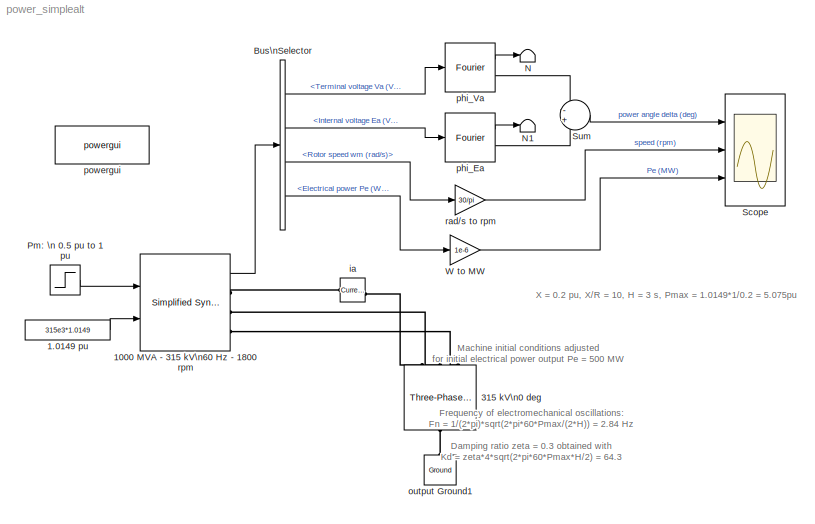
MODEL power_simplealt
KIND model
BLOCK [Constant] 1.0149 pu
  Value = 315e3*1.0149
BLOCK [Reference] 1000 MVA - 315 kV\n60 Hz - 1800 rpm  REF=powerlib/Machines/Simplified Synchronous\nMachine SI Units
  AttributesFormatString = \\n
  ConnectionType = 3-wire Y
  InitialConditions = [0 5.65442 1296.03 1296.03 1296.03 0 -120 120]
  InternalRL = [ 99.225*0.02 ,99.225/(2*pi*60)*0.2 ]
  LoadFlowParameters = [1 500000000 0 0 0]
  Mechanical = [168870,  64.3,  2]
  NominalParameters = [ 1000e6, 315e3, 60 ]
  Ports = [2, 1, 0, 0, 0, 0, 3]
  ShowPortLabels = on
  SourceBlock = powerlib/Machines/Simplified Synchronous\nMachine SI Units
  SourceType = Simplified Synchronous Machine
  Units = 1
BLOCK [Reference] 315 kV\n0 deg  REF=powerlib/Electrical\nSources/Three-Phase\nProgrammable\nVoltage Source
  Amplitudes = [1 0.8 1.2 1.0]
  HarmonicA = [3 0.2 -25 0]
  HarmonicB = [2 0.15  35 2]
  HarmonicGeneration = off
  Ports = [0, 0, 0, 0, 0, 1, 3]
  PositiveSequence = [315e3 0  60]
  ShowPortLabels = on
  SourceBlock = powerlib/Electrical\nSources/Three-Phase\nProgrammable\nVoltage Source
  SourceType = Three-Phase Programmable Voltage Source
  TimeValues = [0 0.1 0.15 0.2]
  Timing = [0.05  3]
  VariationEntity = None
  VariationFrequency = 2
  VariationMagnitude = 0.3
  VariationPhaseA = off
  VariationRate = 10
  VariationStep = -0.5
  VariationTiming = [0.1 1.2]
  VariationType = Step
BLOCK [BusSelector] Bus\nSelector
  DialogController = Simulink.DDGSource_Bus
  OutputSignals = Terminal voltage Va (V),Internal voltage Ea (V),Rotor speed wm (rad/s),Electrical power Pe (W)
  Ports = [1, 4]
BLOCK [Terminator] N
BLOCK [Terminator] N1
BLOCK [Step] Pm: \n 0.5 pu to 1 pu
  After = 1000e6
  Before = 505e6
  SampleTime = 0
  Time = 0.5
BLOCK [Scope] Scope
  DataFormat = Structure
  LimitDataPoints = off
  NumInputPorts = 3
  Ports = [3]
  SaveName = delta
  SaveToWorkspace = on
  YMax = 14~1806~1200
  YMin = 5~1797~500
  ZoomMode = xonly
BLOCK [Sum] Sum
  IconShape = round
  Inputs = -+
  Ports = [2, 1]
BLOCK [Gain] W to MW
  Gain = 1e-6
BLOCK [Reference] ia  REF=powerlib/Measurements/Current Measurement
  AttributesFormatString = \\n
  OutputType = Magnitude
  PSBequivalent = 0
  PhasorSimulation = off
  Ports = [0, 1, 0, 0, 0, 1, 1]
  ShowPortLabels = on
  SourceBlock = powerlib/Measurements/Current Measurement
  SourceType = Current Measurement
  Tag = PoWeRsYsTeMmEaSuReMeNt
BLOCK [Reference] output Ground1  REF=powerlib/Elements/Ground
  AttributesFormatString = \\n
  LConnTagsString = a
  LeftPortType = p1
  PhysicalDomain = powersysdomain
  Ports = [0, 0, 0, 0, 0, 1]
  RightPortType = p1
  SourceBlock = powerlib/Elements/Ground
  SourceType = Ground
  SubClassName = unknown
BLOCK [Reference] phi_Ea  REF=powerlib_extras/Measurements/Fourier
  Ports = [1, 2]
  ShowPortLabels = on
  SourceBlock = powerlib_extras/Measurements/Fourier
  SourceType = Fourier analyser
  f1 = 60
  n = 1
BLOCK [Reference] phi_Va  REF=powerlib_extras/Measurements/Fourier
  Ports = [1, 2]
  ShowPortLabels = on
  SourceBlock = powerlib_extras/Measurements/Fourier
  SourceType = Fourier analyser
  f1 = 60
  n = 1
BLOCK [Reference] powergui  REF=powerlib/powergui
  DisplayStyle = off
  Frange = [0:2:500]
  FreqAxis = off
  MaxFrequency = 1000
  Ports = []
  Priority = 2
  RmsSteady = 1
  ShowPortLabels = on
  SourceBlock = powerlib/powergui
  SourceType = PSB option menu block
  StartTime = 0.0
  Ts = 0
  Xlog = off
  Ylog = off
  ZoomFFT = on
  cycles = 1
  display = off
  echomessages = off
  frequency = 60
  frequencyindice = 60
  frequencyindicesteady = 1
  fundamental = 60
  methode = off
  save = off
  variable = ZData
BLOCK [Gain] rad//s to rpm
  Gain = 30/pi
ANNOTATION (root): Damping ratio zeta = 0.3 obtained with\nKd = zeta*4*sqrt(2*pi*60*Pmax*H/2) = 64.3
ANNOTATION (root): Frequency of electromechanical oscillations:\nFn = 1/(2*pi)*sqrt(2*pi*60*Pmax/(2*H)) = 2.84 Hz
ANNOTATION (root): Machine initial conditions adjusted \nfor initial electrical power output Pe = 500 MW
ANNOTATION (root): X = 0.2 pu, X/R = 10, H = 3 s, Pmax = 1.0149*1/0.2 = 5.075pu
LINE 1.0149 pu:1 -> 1000 MVA - 315 kV\n60 Hz - 1800 rpm:2
LINE 1000 MVA - 315 kV\n60 Hz - 1800 rpm:1 -> Bus\nSelector:1
LINE Bus\nSelector:1 -> phi_Va:1
LINE Bus\nSelector:2 -> phi_Ea:1
LINE Bus\nSelector:3 -> rad//s to rpm:1
LINE Bus\nSelector:4 -> W to MW:1
LINE Pm: \n 0.5 pu to 1 pu:1 -> 1000 MVA - 315 kV\n60 Hz - 1800 rpm:1
LINE Sum:1 -> Scope:1
LINE W to MW:1 -> Scope:3
LINE phi_Ea:1 -> N1:1
LINE phi_Ea:2 -> Sum:2
LINE phi_Va:1 -> N:1
LINE phi_Va:2 -> Sum:1
LINE rad//s to rpm:1 -> Scope:2
PLINE 1000 MVA - 315 kV\n60 Hz - 1800 rpm:RConn1 -- ia:LConn1
PLINE 1000 MVA - 315 kV\n60 Hz - 1800 rpm:RConn2 -- 315 kV\n0 deg:RConn2
PLINE 1000 MVA - 315 kV\n60 Hz - 1800 rpm:RConn3 -- 315 kV\n0 deg:RConn3
PLINE 315 kV\n0 deg:LConn1 -- output Ground1:LConn1
PLINE 315 kV\n0 deg:RConn1 -- ia:RConn1
